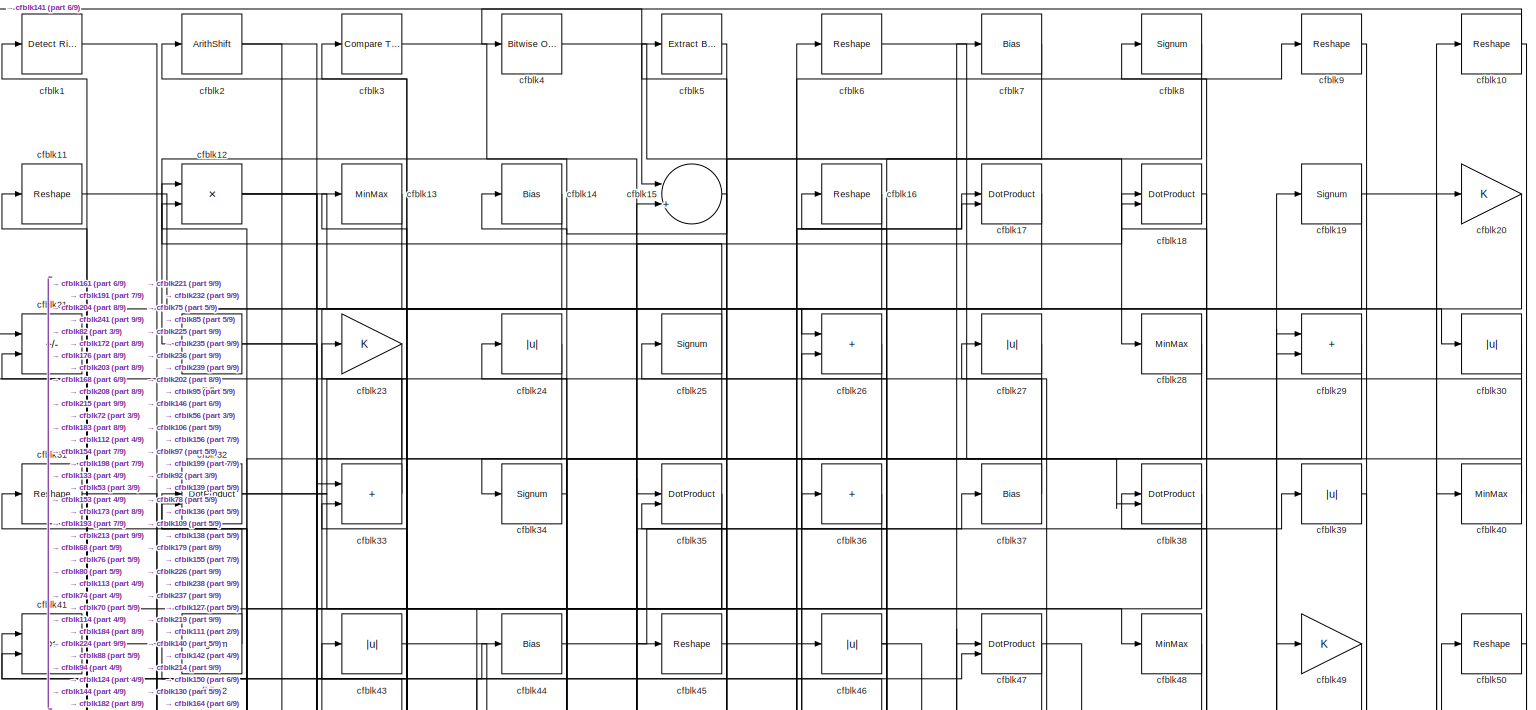
[diagram: root canvas - part 1/9, full width, top band]
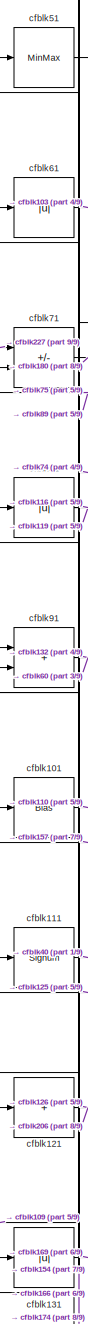
[diagram: root canvas - part 2/9, middle left region]
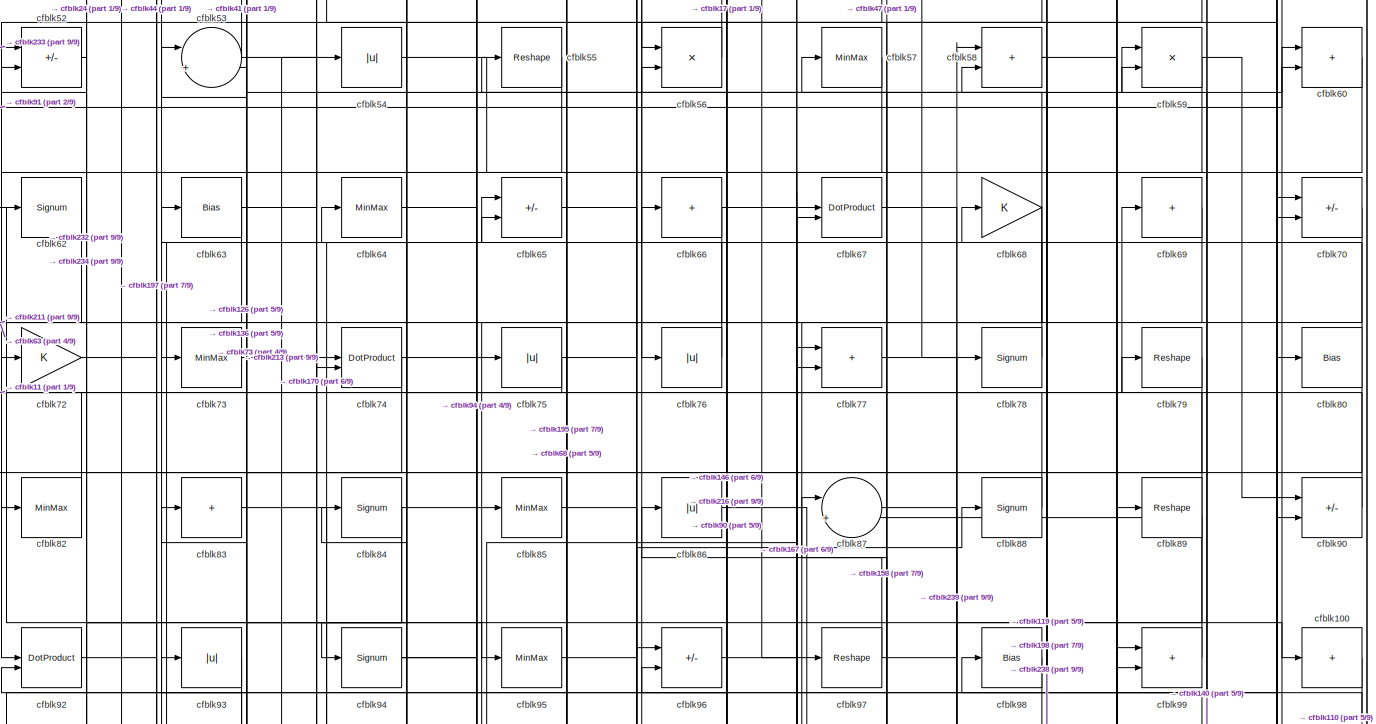
[diagram: root canvas - part 3/9, full width, top band]
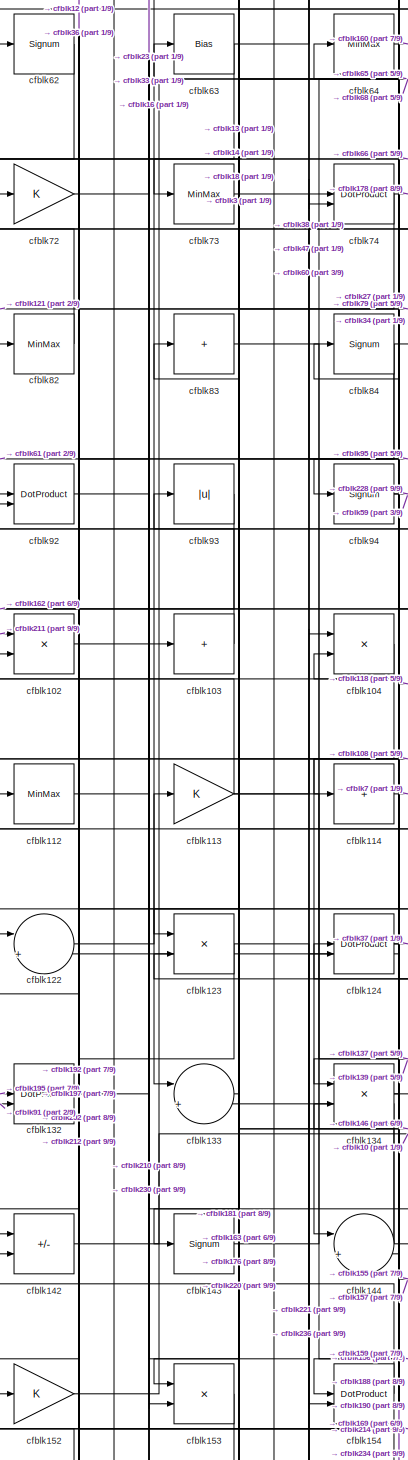
[diagram: root canvas - part 4/9, middle left region]
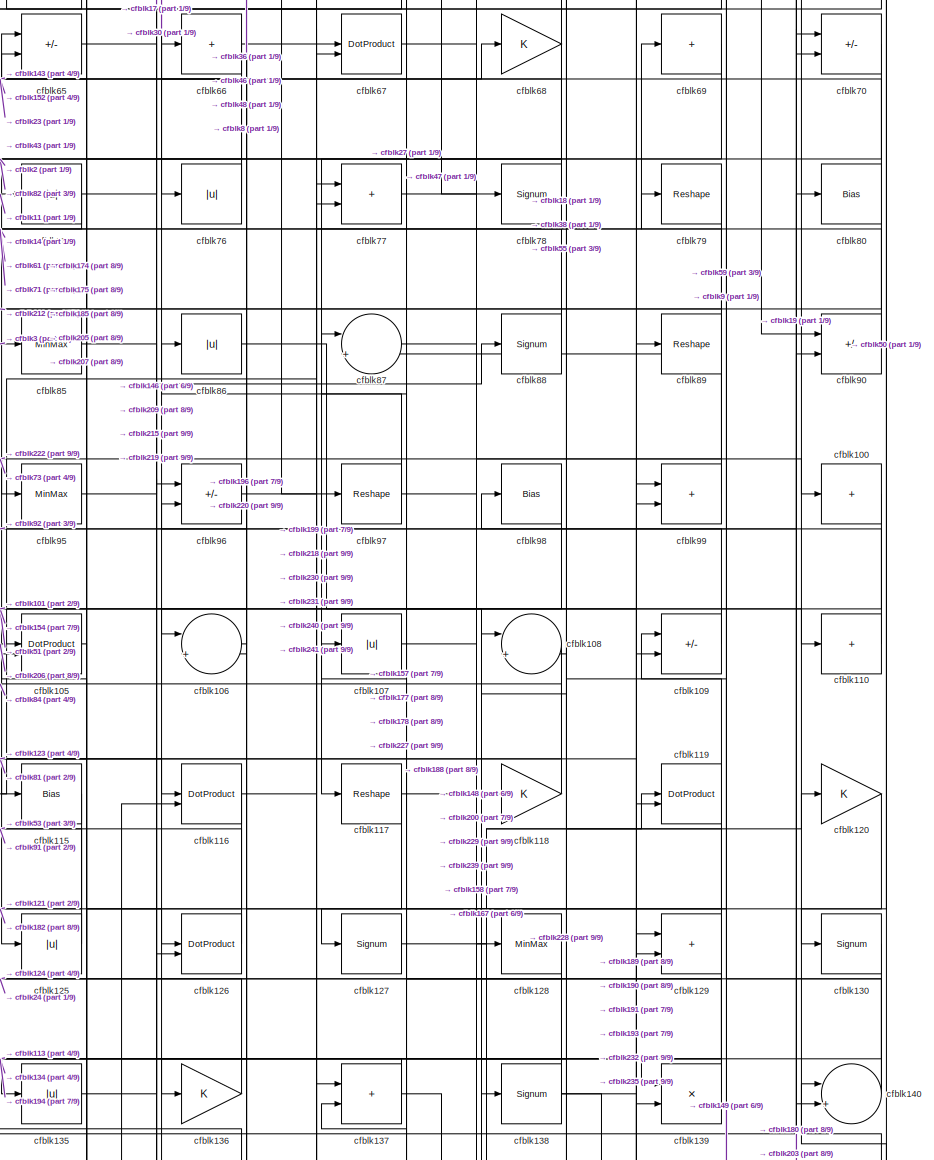
[diagram: root canvas - part 5/9, middle right region]
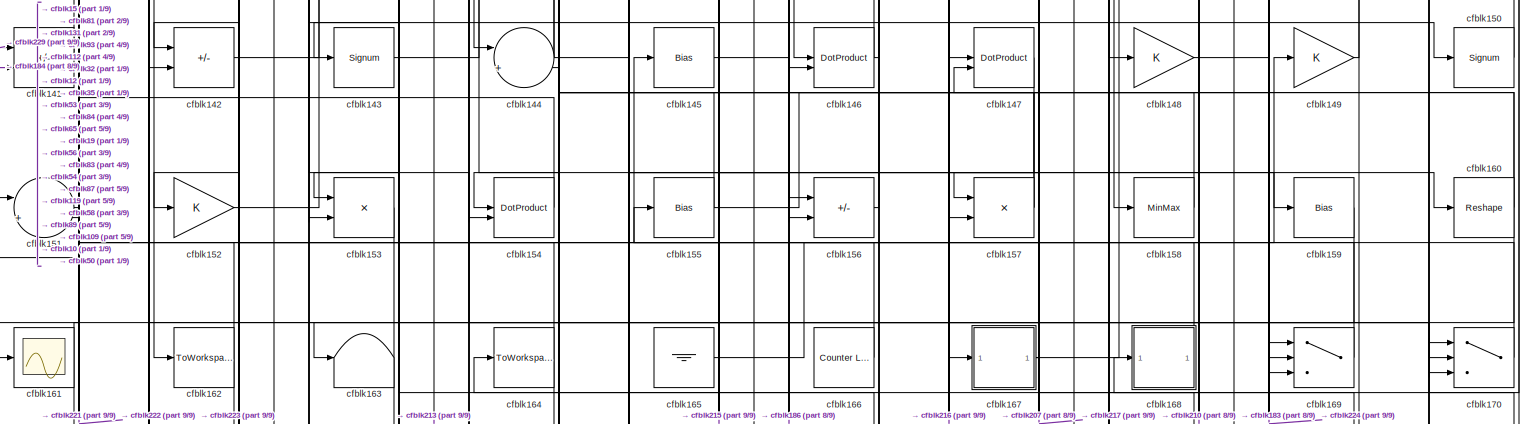
[diagram: root canvas - part 6/9, full width, middle band]
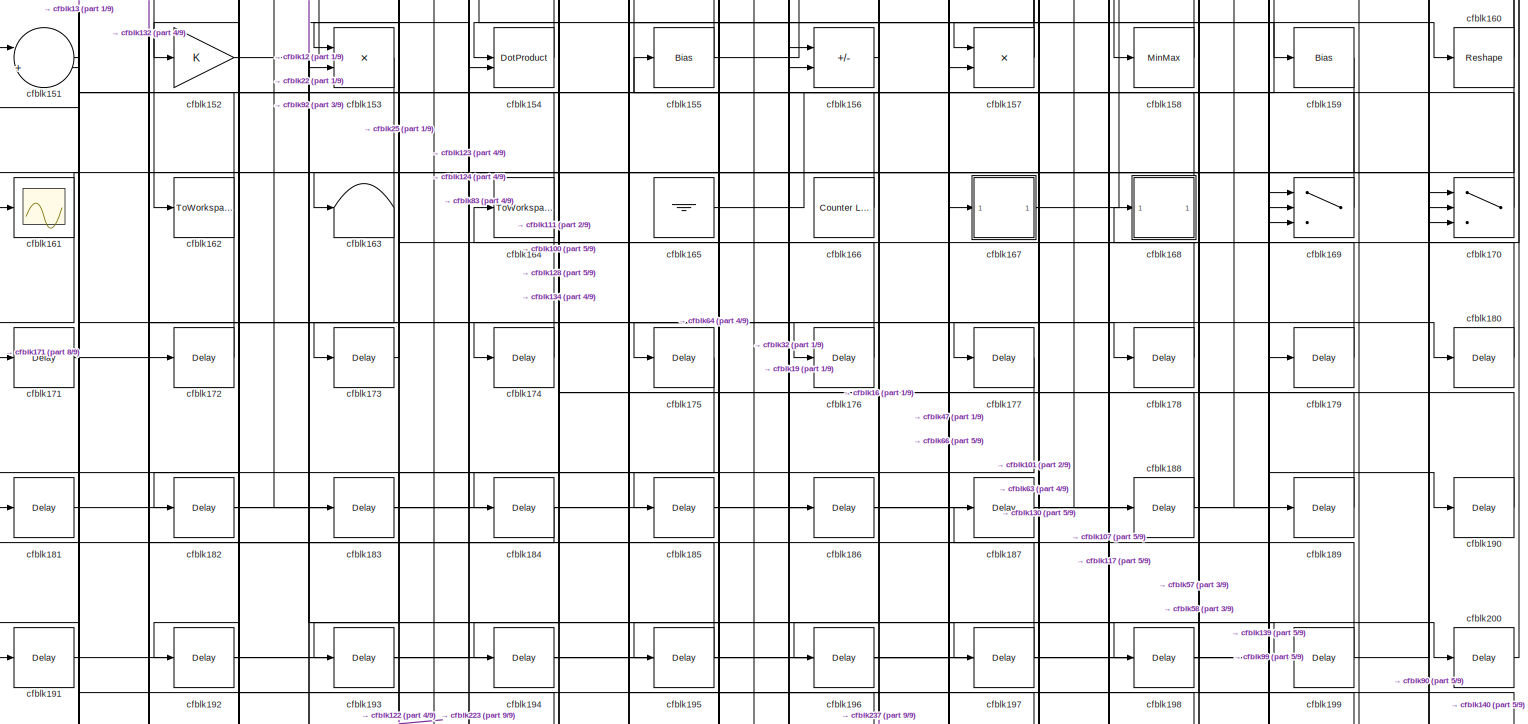
[diagram: root canvas - part 7/9, full width, bottom band]
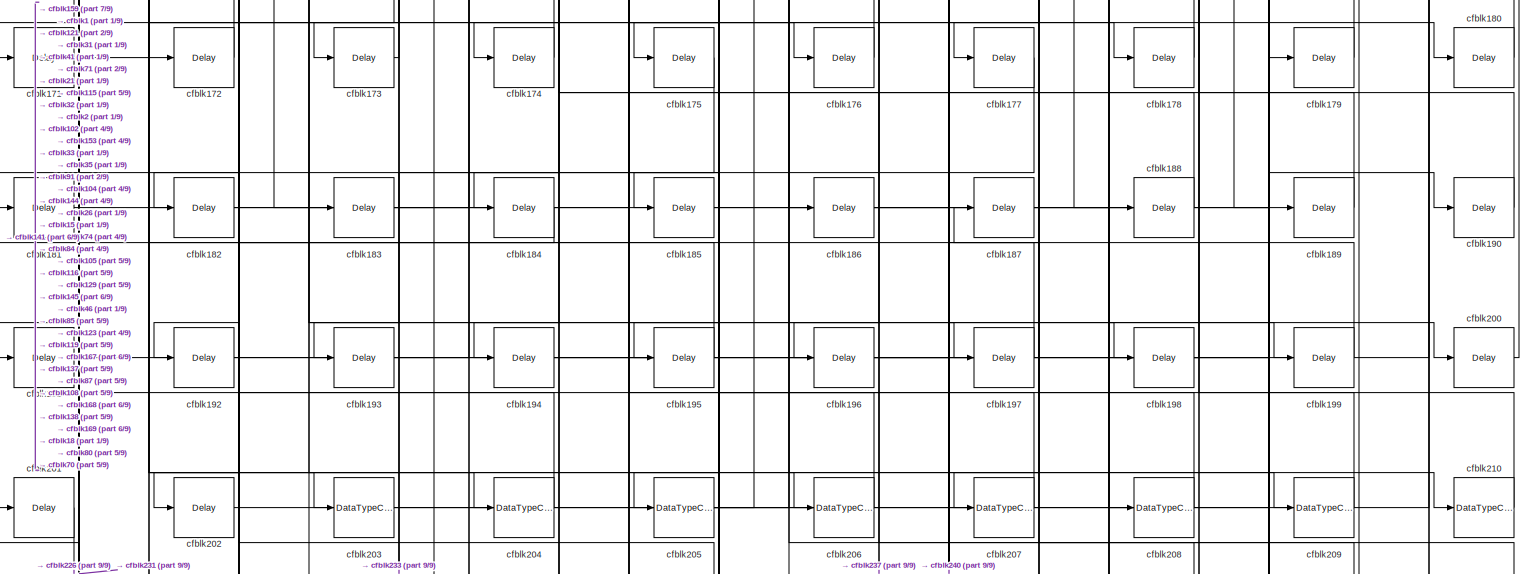
[diagram: root canvas - part 8/9, full width, bottom band]
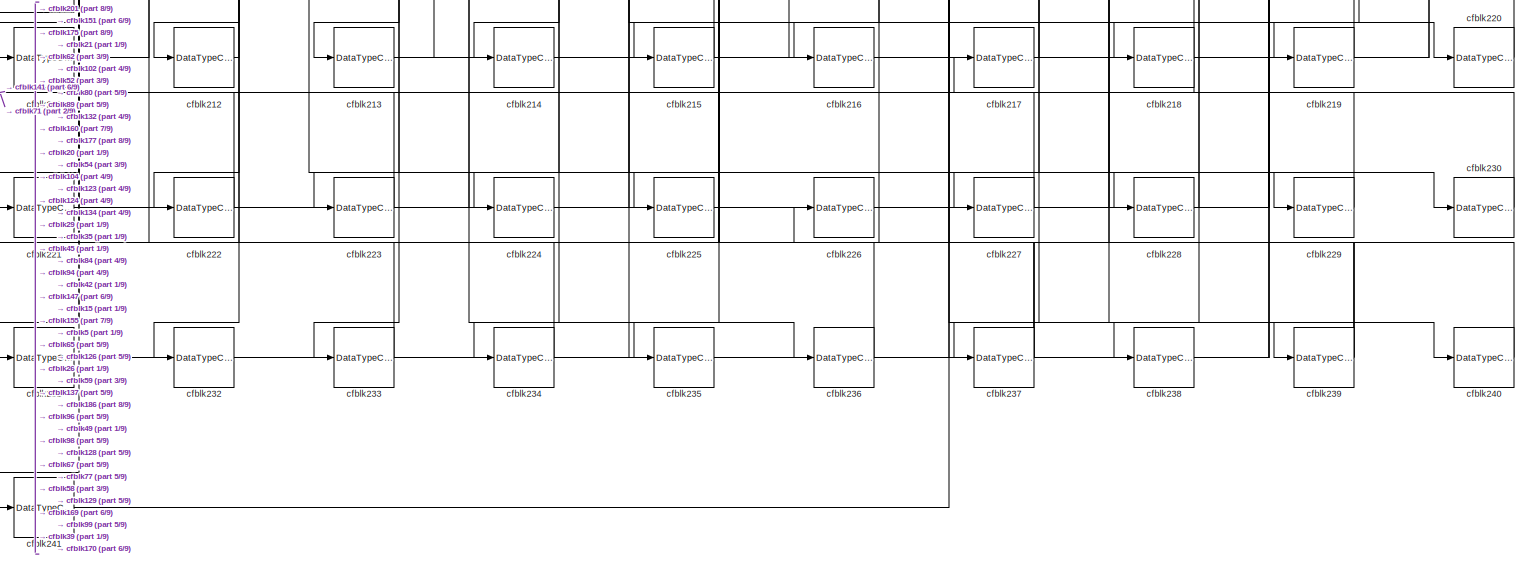
[diagram: root canvas - part 9/9, full width, bottom band]
MODEL slx_066cd724c522
KIND model
CONFIG AbsTol = auto
CONFIG EnableMultiTasking = off
CONFIG FixedStep = auto
CONFIG MaxStep = auto
CONFIG MinStep = auto
CONFIG RelTol = 1e-3
CONFIG SampleTimeConstraint = Unconstrained
CONFIG SolverName = VariableStepAuto
CONFIG StartTime = 0.0
CONFIG StopTime = 10.0
BLOCK [Reference] cfblk1  REF=hdlsllib/Logic and Bit
Operations/Detect Rise
Positive
  SourceBlock = hdlsllib/Logic and Bit\nOperations/Detect Rise\nPositive
  SourceType = Detect Rise Positive
BLOCK [Reshape] cfblk10
BLOCK [Sum] cfblk100
  IconShape = rectangular
  Inputs = +
BLOCK [Bias] cfblk101
  Bias = 0.0
  SaturateOnIntegerOverflow = off
BLOCK [Product] cfblk102
  Inputs = */
  RndMeth = Zero
  SaturateOnIntegerOverflow = on
BLOCK [Sum] cfblk103
  IconShape = rectangular
  Inputs = +
BLOCK [Product] cfblk104
  Inputs = */
  RndMeth = Zero
  SaturateOnIntegerOverflow = on
BLOCK [DotProduct] cfblk105
  OutDataTypeStr = Inherit: Inherit via internal rule
BLOCK [Sum] cfblk106
  Inputs = |++
BLOCK [Abs] cfblk107
  SaturateOnIntegerOverflow = off
BLOCK [Sum] cfblk108
  Inputs = |++
BLOCK [Sum] cfblk109
  IconShape = rectangular
  Inputs = +-
BLOCK [Reshape] cfblk11
BLOCK [Sum] cfblk110
  IconShape = rectangular
  Inputs = +
BLOCK [Signum] cfblk111
BLOCK [MinMax] cfblk112
BLOCK [Gain] cfblk113
BLOCK [Sum] cfblk114
  IconShape = rectangular
  Inputs = +
BLOCK [Bias] cfblk115
  Bias = 0.0
  SaturateOnIntegerOverflow = off
BLOCK [DotProduct] cfblk116
  OutDataTypeStr = Inherit: Inherit via internal rule
BLOCK [Reshape] cfblk117
BLOCK [Gain] cfblk118
BLOCK [DotProduct] cfblk119
  OutDataTypeStr = Inherit: Inherit via internal rule
BLOCK [Product] cfblk12
  Inputs = */
  RndMeth = Zero
  SaturateOnIntegerOverflow = on
BLOCK [Gain] cfblk120
BLOCK [Sum] cfblk121
  IconShape = rectangular
  Inputs = +
BLOCK [Sum] cfblk122
  Inputs = |++
BLOCK [Product] cfblk123
  Inputs = */
  RndMeth = Zero
  SaturateOnIntegerOverflow = on
BLOCK [DotProduct] cfblk124
  OutDataTypeStr = Inherit: Inherit via internal rule
BLOCK [Abs] cfblk125
  SaturateOnIntegerOverflow = off
BLOCK [DotProduct] cfblk126
  OutDataTypeStr = Inherit: Inherit via internal rule
BLOCK [Signum] cfblk127
BLOCK [MinMax] cfblk128
BLOCK [Sum] cfblk129
  IconShape = rectangular
BLOCK [MinMax] cfblk13
BLOCK [Signum] cfblk130
BLOCK [Abs] cfblk131
  SaturateOnIntegerOverflow = off
BLOCK [DotProduct] cfblk132
  OutDataTypeStr = Inherit: Inherit via internal rule
BLOCK [Sum] cfblk133
  Inputs = |++
BLOCK [Product] cfblk134
  Inputs = */
  RndMeth = Zero
  SaturateOnIntegerOverflow = on
BLOCK [Abs] cfblk135
  SaturateOnIntegerOverflow = off
BLOCK [Gain] cfblk136
BLOCK [Sum] cfblk137
  IconShape = rectangular
BLOCK [Signum] cfblk138
BLOCK [Product] cfblk139
  Inputs = */
  RndMeth = Zero
  SaturateOnIntegerOverflow = on
BLOCK [Bias] cfblk14
  Bias = 0.0
  SaturateOnIntegerOverflow = off
BLOCK [Sum] cfblk140
  Inputs = |++
BLOCK [Sum] cfblk141
  IconShape = rectangular
  Inputs = +-
BLOCK [Sum] cfblk142
  IconShape = rectangular
  Inputs = +-
BLOCK [Signum] cfblk143
BLOCK [Sum] cfblk144
  Inputs = |++
BLOCK [Bias] cfblk145
  Bias = 0.0
  SaturateOnIntegerOverflow = off
BLOCK [DotProduct] cfblk146
  OutDataTypeStr = Inherit: Inherit via internal rule
BLOCK [DotProduct] cfblk147
  OutDataTypeStr = Inherit: Inherit via internal rule
BLOCK [Gain] cfblk148
BLOCK [Gain] cfblk149
BLOCK [Sum] cfblk15
  Inputs = |++
BLOCK [Signum] cfblk150
BLOCK [Sum] cfblk151
  Inputs = |++
BLOCK [Gain] cfblk152
BLOCK [Product] cfblk153
  Inputs = */
  RndMeth = Zero
  SaturateOnIntegerOverflow = on
BLOCK [DotProduct] cfblk154
  OutDataTypeStr = Inherit: Inherit via internal rule
BLOCK [Bias] cfblk155
  Bias = 0.0
  SaturateOnIntegerOverflow = off
BLOCK [Sum] cfblk156
  IconShape = rectangular
  Inputs = +-
BLOCK [Product] cfblk157
  Inputs = */
  RndMeth = Zero
  SaturateOnIntegerOverflow = on
BLOCK [MinMax] cfblk158
BLOCK [Bias] cfblk159
  Bias = 0.0
  SaturateOnIntegerOverflow = off
BLOCK [Reshape] cfblk16
BLOCK [Reshape] cfblk160
BLOCK [Scope] cfblk161
  Floating = off
  NumInputPorts = 1
  ScopeSpecificationString = Simulink.scopes.TimeScopeBlockCfg('CurrentConfiguration', extmgr.ConfigurationSet(extmgr.Configuration('Core','General UI',true),extmgr.Configuration('Core','Source UI',true),extmgr.Configuration('Sources','WiredSimulink',true,'DataLoggingVariableName','ScopeData2','DataLoggingSaveFormat','Array','DataLoggingLimitDataPoints',true,'DataLoggingDecimation','1'),extmgr.Configuration('Visuals','Time Do...<+868ch>
BLOCK [ToWorkspace] cfblk162
  MaxDataPoints = inf
  SampleTime = -1
  SaveFormat = Timeseries
  VariableName = simout
BLOCK [Terminator] cfblk163
BLOCK [ToWorkspace] cfblk164
  MaxDataPoints = inf
  SampleTime = -1
  SaveFormat = Timeseries
  VariableName = simout
BLOCK [Ground] cfblk165
BLOCK [Reference] cfblk166  REF=hdlsllib/Sources/Counter
Limited
  SourceBlock = hdlsllib/Sources/Counter\nLimited
  SourceType = Counter Limited
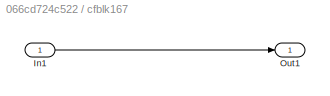
BLOCK [SubSystem] cfblk167
  LibrarySourceBlock = hdlsllib/Ports &\nSubsystems/Subsystem
BLOCK [Inport] cfblk167/In1
BLOCK [Outport] cfblk167/Out1
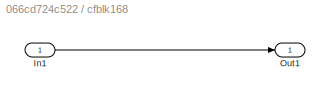
BLOCK [SubSystem] cfblk168
  LibrarySourceBlock = hdlsllib/Ports &\nSubsystems/Subsystem
BLOCK [Inport] cfblk168/In1
BLOCK [Outport] cfblk168/Out1
BLOCK [Switch] cfblk169
  InputSameDT = off
  SaturateOnIntegerOverflow = off
BLOCK [DotProduct] cfblk17
  OutDataTypeStr = Inherit: Inherit via internal rule
BLOCK [Switch] cfblk170
  InputSameDT = off
  SaturateOnIntegerOverflow = off
BLOCK [Delay] cfblk171
  InputPortMap = u0
  SampleTime = 1
BLOCK [Delay] cfblk172
  InputPortMap = u0
  SampleTime = 1
BLOCK [Delay] cfblk173
  InputPortMap = u0
  SampleTime = 1
BLOCK [Delay] cfblk174
  InputPortMap = u0
  SampleTime = 1
BLOCK [Delay] cfblk175
  InputPortMap = u0
  SampleTime = 1
BLOCK [Delay] cfblk176
  InputPortMap = u0
  SampleTime = 1
BLOCK [Delay] cfblk177
  InputPortMap = u0
  SampleTime = 1
BLOCK [Delay] cfblk178
  InputPortMap = u0
  SampleTime = 1
BLOCK [Delay] cfblk179
  InputPortMap = u0
  SampleTime = 1
BLOCK [DotProduct] cfblk18
  OutDataTypeStr = Inherit: Inherit via internal rule
BLOCK [Delay] cfblk180
  InputPortMap = u0
  SampleTime = 1
BLOCK [Delay] cfblk181
  InputPortMap = u0
  SampleTime = 1
BLOCK [Delay] cfblk182
  InputPortMap = u0
  SampleTime = 1
BLOCK [Delay] cfblk183
  InputPortMap = u0
  SampleTime = 1
BLOCK [Delay] cfblk184
  InputPortMap = u0
  SampleTime = 1
BLOCK [Delay] cfblk185
  InputPortMap = u0
  SampleTime = 1
BLOCK [Delay] cfblk186
  InputPortMap = u0
  SampleTime = 1
BLOCK [Delay] cfblk187
  InputPortMap = u0
  SampleTime = 1
BLOCK [Delay] cfblk188
  InputPortMap = u0
  SampleTime = 1
BLOCK [Delay] cfblk189
  InputPortMap = u0
  SampleTime = 1
BLOCK [Signum] cfblk19
BLOCK [Delay] cfblk190
  InputPortMap = u0
  SampleTime = 1
BLOCK [Delay] cfblk191
  InputPortMap = u0
  SampleTime = 1
BLOCK [Delay] cfblk192
  InputPortMap = u0
  SampleTime = 1
BLOCK [Delay] cfblk193
  InputPortMap = u0
  SampleTime = 1
BLOCK [Delay] cfblk194
  InputPortMap = u0
  SampleTime = 1
BLOCK [Delay] cfblk195
  InputPortMap = u0
  SampleTime = 1
BLOCK [Delay] cfblk196
  InputPortMap = u0
  SampleTime = 1
BLOCK [Delay] cfblk197
  InputPortMap = u0
  SampleTime = 1
BLOCK [Delay] cfblk198
  InputPortMap = u0
  SampleTime = 1
BLOCK [Delay] cfblk199
  InputPortMap = u0
  SampleTime = 1
BLOCK [ArithShift] cfblk2
  BitShiftNumber = 8
  InputPortMap = u0
BLOCK [Gain] cfblk20
BLOCK [Delay] cfblk200
  InputPortMap = u0
  SampleTime = 1
BLOCK [Delay] cfblk201
  InputPortMap = u0
  SampleTime = 1
BLOCK [Delay] cfblk202
  InputPortMap = u0
  SampleTime = 1
BLOCK [DataTypeConversion] cfblk203
  OutDataTypeStr = uint8
  RndMeth = Floor
  SaturateOnIntegerOverflow = off
BLOCK [DataTypeConversion] cfblk204
  OutDataTypeStr = uint8
  RndMeth = Floor
  SaturateOnIntegerOverflow = off
BLOCK [DataTypeConversion] cfblk205
  RndMeth = Floor
  SaturateOnIntegerOverflow = off
BLOCK [DataTypeConversion] cfblk206
  OutDataTypeStr = uint8
  RndMeth = Floor
  SaturateOnIntegerOverflow = off
BLOCK [DataTypeConversion] cfblk207
  OutDataTypeStr = uint8
  RndMeth = Floor
  SaturateOnIntegerOverflow = off
BLOCK [DataTypeConversion] cfblk208
  OutDataTypeStr = uint8
  RndMeth = Floor
  SaturateOnIntegerOverflow = off
BLOCK [DataTypeConversion] cfblk209
  OutDataTypeStr = uint8
  RndMeth = Floor
  SaturateOnIntegerOverflow = off
BLOCK [Sum] cfblk21
  IconShape = rectangular
  Inputs = +-
BLOCK [DataTypeConversion] cfblk210
  OutDataTypeStr = uint8
  RndMeth = Floor
  SaturateOnIntegerOverflow = off
BLOCK [DataTypeConversion] cfblk211
  OutDataTypeStr = uint8
  RndMeth = Floor
  SaturateOnIntegerOverflow = off
BLOCK [DataTypeConversion] cfblk212
  OutDataTypeStr = uint8
  RndMeth = Floor
  SaturateOnIntegerOverflow = off
BLOCK [DataTypeConversion] cfblk213
  RndMeth = Floor
  SaturateOnIntegerOverflow = off
BLOCK [DataTypeConversion] cfblk214
  OutDataTypeStr = uint8
  RndMeth = Floor
  SaturateOnIntegerOverflow = off
BLOCK [DataTypeConversion] cfblk215
  RndMeth = Floor
  SaturateOnIntegerOverflow = off
BLOCK [DataTypeConversion] cfblk216
  OutDataTypeStr = uint8
  RndMeth = Floor
  SaturateOnIntegerOverflow = off
BLOCK [DataTypeConversion] cfblk217
  OutDataTypeStr = uint8
  RndMeth = Floor
  SaturateOnIntegerOverflow = off
BLOCK [DataTypeConversion] cfblk218
  RndMeth = Floor
  SaturateOnIntegerOverflow = off
BLOCK [DataTypeConversion] cfblk219
  OutDataTypeStr = uint8
  RndMeth = Floor
  SaturateOnIntegerOverflow = off
BLOCK [MinMax] cfblk22
BLOCK [DataTypeConversion] cfblk220
  OutDataTypeStr = uint8
  RndMeth = Floor
  SaturateOnIntegerOverflow = off
BLOCK [DataTypeConversion] cfblk221
  RndMeth = Floor
  SaturateOnIntegerOverflow = off
BLOCK [DataTypeConversion] cfblk222
  OutDataTypeStr = uint8
  RndMeth = Floor
  SaturateOnIntegerOverflow = off
BLOCK [DataTypeConversion] cfblk223
  OutDataTypeStr = uint8
  RndMeth = Floor
  SaturateOnIntegerOverflow = off
BLOCK [DataTypeConversion] cfblk224
  OutDataTypeStr = uint8
  RndMeth = Floor
  SaturateOnIntegerOverflow = off
BLOCK [DataTypeConversion] cfblk225
  OutDataTypeStr = uint8
  RndMeth = Floor
  SaturateOnIntegerOverflow = off
BLOCK [DataTypeConversion] cfblk226
  OutDataTypeStr = uint8
  RndMeth = Floor
  SaturateOnIntegerOverflow = off
BLOCK [DataTypeConversion] cfblk227
  RndMeth = Floor
  SaturateOnIntegerOverflow = off
BLOCK [DataTypeConversion] cfblk228
  OutDataTypeStr = uint8
  RndMeth = Floor
  SaturateOnIntegerOverflow = off
BLOCK [DataTypeConversion] cfblk229
  OutDataTypeStr = uint8
  RndMeth = Floor
  SaturateOnIntegerOverflow = off
BLOCK [Gain] cfblk23
BLOCK [DataTypeConversion] cfblk230
  OutDataTypeStr = uint8
  RndMeth = Floor
  SaturateOnIntegerOverflow = off
BLOCK [DataTypeConversion] cfblk231
  OutDataTypeStr = uint8
  RndMeth = Floor
  SaturateOnIntegerOverflow = off
BLOCK [DataTypeConversion] cfblk232
  RndMeth = Floor
  SaturateOnIntegerOverflow = off
BLOCK [DataTypeConversion] cfblk233
  OutDataTypeStr = uint8
  RndMeth = Floor
  SaturateOnIntegerOverflow = off
BLOCK [DataTypeConversion] cfblk234
  OutDataTypeStr = uint8
  RndMeth = Floor
  SaturateOnIntegerOverflow = off
BLOCK [DataTypeConversion] cfblk235
  OutDataTypeStr = uint8
  RndMeth = Floor
  SaturateOnIntegerOverflow = off
BLOCK [DataTypeConversion] cfblk236
  OutDataTypeStr = uint8
  RndMeth = Floor
  SaturateOnIntegerOverflow = off
BLOCK [DataTypeConversion] cfblk237
  RndMeth = Floor
  SaturateOnIntegerOverflow = off
BLOCK [DataTypeConversion] cfblk238
  OutDataTypeStr = uint8
  RndMeth = Floor
  SaturateOnIntegerOverflow = off
BLOCK [DataTypeConversion] cfblk239
  RndMeth = Floor
  SaturateOnIntegerOverflow = off
BLOCK [Abs] cfblk24
  SaturateOnIntegerOverflow = off
BLOCK [DataTypeConversion] cfblk240
  OutDataTypeStr = uint8
  RndMeth = Floor
  SaturateOnIntegerOverflow = off
BLOCK [DataTypeConversion] cfblk241
  OutDataTypeStr = uint8
  RndMeth = Floor
  SaturateOnIntegerOverflow = off
BLOCK [Signum] cfblk25
BLOCK [Sum] cfblk26
  IconShape = rectangular
BLOCK [Abs] cfblk27
  SaturateOnIntegerOverflow = off
BLOCK [MinMax] cfblk28
BLOCK [Sum] cfblk29
  IconShape = rectangular
BLOCK [Reference] cfblk3  REF=hdlsllib/Logic and Bit
Operations/Compare
To Constant
  SourceBlock = hdlsllib/Logic and Bit\nOperations/Compare\nTo Constant
  SourceType = Compare To Constant
BLOCK [Abs] cfblk30
  SaturateOnIntegerOverflow = off
BLOCK [Reshape] cfblk31
BLOCK [DotProduct] cfblk32
  OutDataTypeStr = Inherit: Inherit via internal rule
BLOCK [Sum] cfblk33
  IconShape = rectangular
BLOCK [Signum] cfblk34
BLOCK [DotProduct] cfblk35
  OutDataTypeStr = Inherit: Inherit via internal rule
BLOCK [Sum] cfblk36
  IconShape = rectangular
  Inputs = +
BLOCK [Bias] cfblk37
  Bias = 0.0
  SaturateOnIntegerOverflow = off
BLOCK [DotProduct] cfblk38
  OutDataTypeStr = Inherit: Inherit via internal rule
BLOCK [Abs] cfblk39
  SaturateOnIntegerOverflow = off
BLOCK [Reference] cfblk4  REF=simulink/Logic and Bit
Operations/Bitwise
Operator
  LibrarySourceBlock = hdlsllib/Logic and Bit\nOperations/Bitwise\nOperator
  SourceBlock = simulink/Logic and Bit\nOperations/Bitwise\nOperator
  SourceType = Bitwise Operator
BLOCK [MinMax] cfblk40
BLOCK [Product] cfblk41
  Inputs = */
  RndMeth = Zero
  SaturateOnIntegerOverflow = on
BLOCK [Signum] cfblk42
BLOCK [Abs] cfblk43
  SaturateOnIntegerOverflow = off
BLOCK [Bias] cfblk44
  Bias = 0.0
  SaturateOnIntegerOverflow = off
BLOCK [Reshape] cfblk45
BLOCK [Abs] cfblk46
  SaturateOnIntegerOverflow = off
BLOCK [DotProduct] cfblk47
  OutDataTypeStr = Inherit: Inherit via internal rule
BLOCK [MinMax] cfblk48
BLOCK [Gain] cfblk49
BLOCK [Reference] cfblk5  REF=simulink/Logic and Bit
Operations/Extract Bits
  LibrarySourceBlock = hdlsllib/Logic and Bit\nOperations/Extract Bits
  SourceBlock = simulink/Logic and Bit\nOperations/Extract Bits
  SourceType = Extract Bits
BLOCK [Reshape] cfblk50
BLOCK [MinMax] cfblk51
BLOCK [Sum] cfblk52
  IconShape = rectangular
  Inputs = +-
BLOCK [Sum] cfblk53
  Inputs = |++
BLOCK [Abs] cfblk54
  SaturateOnIntegerOverflow = off
BLOCK [Reshape] cfblk55
BLOCK [Product] cfblk56
  Inputs = */
  RndMeth = Zero
  SaturateOnIntegerOverflow = on
BLOCK [MinMax] cfblk57
BLOCK [Sum] cfblk58
  IconShape = rectangular
BLOCK [Product] cfblk59
  Inputs = */
  RndMeth = Zero
  SaturateOnIntegerOverflow = on
BLOCK [Reshape] cfblk6
BLOCK [Sum] cfblk60
  IconShape = rectangular
BLOCK [Abs] cfblk61
  SaturateOnIntegerOverflow = off
BLOCK [Signum] cfblk62
BLOCK [Bias] cfblk63
  Bias = 0.0
  SaturateOnIntegerOverflow = off
BLOCK [MinMax] cfblk64
BLOCK [Sum] cfblk65
  IconShape = rectangular
  Inputs = +-
BLOCK [Sum] cfblk66
  IconShape = rectangular
  Inputs = +
BLOCK [DotProduct] cfblk67
  OutDataTypeStr = Inherit: Inherit via internal rule
BLOCK [Gain] cfblk68
BLOCK [Sum] cfblk69
  IconShape = rectangular
  Inputs = +
BLOCK [Bias] cfblk7
  Bias = 0.0
  SaturateOnIntegerOverflow = off
BLOCK [Sum] cfblk70
  IconShape = rectangular
  Inputs = +-
BLOCK [Sum] cfblk71
  IconShape = rectangular
  Inputs = +-
BLOCK [Gain] cfblk72
BLOCK [MinMax] cfblk73
BLOCK [DotProduct] cfblk74
  OutDataTypeStr = Inherit: Inherit via internal rule
BLOCK [Abs] cfblk75
  SaturateOnIntegerOverflow = off
BLOCK [Abs] cfblk76
  SaturateOnIntegerOverflow = off
BLOCK [Sum] cfblk77
  IconShape = rectangular
BLOCK [Signum] cfblk78
BLOCK [Reshape] cfblk79
BLOCK [Signum] cfblk8
BLOCK [Bias] cfblk80
  Bias = 0.0
  SaturateOnIntegerOverflow = off
BLOCK [Abs] cfblk81
  SaturateOnIntegerOverflow = off
BLOCK [MinMax] cfblk82
BLOCK [Sum] cfblk83
  IconShape = rectangular
  Inputs = +
BLOCK [Signum] cfblk84
BLOCK [MinMax] cfblk85
BLOCK [Abs] cfblk86
  SaturateOnIntegerOverflow = off
BLOCK [Sum] cfblk87
  Inputs = |++
BLOCK [Signum] cfblk88
BLOCK [Reshape] cfblk89
BLOCK [Reshape] cfblk9
BLOCK [Sum] cfblk90
  IconShape = rectangular
  Inputs = +-
BLOCK [Sum] cfblk91
  IconShape = rectangular
BLOCK [DotProduct] cfblk92
  OutDataTypeStr = Inherit: Inherit via internal rule
BLOCK [Abs] cfblk93
  SaturateOnIntegerOverflow = off
BLOCK [Signum] cfblk94
BLOCK [MinMax] cfblk95
BLOCK [Sum] cfblk96
  IconShape = rectangular
  Inputs = +-
BLOCK [Reshape] cfblk97
BLOCK [Bias] cfblk98
  Bias = 0.0
  SaturateOnIntegerOverflow = off
BLOCK [Sum] cfblk99
  IconShape = rectangular
LINE cfblk100:1 -> cfblk154:1
LINE cfblk101:1 -> cfblk110:1
LINE cfblk102:1 -> cfblk210:1
LINE cfblk103:1 -> cfblk93:1
LINE cfblk104:1 -> cfblk144:1
LINE cfblk105:1 -> cfblk205:1
LINE cfblk106:1 -> cfblk36:1
LINE cfblk107:1 -> cfblk200:1
LINE cfblk108:1 -> cfblk123:1
LINE cfblk109:1 -> cfblk38:1
NET cfblk10:1 -> cfblk164:1, cfblk4:1
LINE cfblk110:1 -> cfblk92:2
LINE cfblk111:1 -> cfblk40:1
LINE cfblk112:1 -> cfblk33:1
NET cfblk113:1 -> cfblk12:1, cfblk139:1, cfblk47:2
LINE cfblk114:1 -> cfblk7:1
LINE cfblk115:1 -> cfblk182:1
NET cfblk116:1 -> cfblk185:1, cfblk79:1
NET cfblk117:1 -> cfblk158:1, cfblk196:1
LINE cfblk118:1 -> cfblk84:1
NET cfblk119:1 -> cfblk177:1, cfblk55:1
LINE cfblk11:1 -> cfblk75:1
LINE cfblk120:1 -> cfblk135:1
NET cfblk121:1 -> cfblk126:1, cfblk206:1
LINE cfblk122:1 -> cfblk113:1
NET cfblk123:1 -> cfblk192:1, cfblk236:1
NET cfblk124:1 -> cfblk234:1, cfblk37:1
LINE cfblk125:1 -> cfblk91:2
LINE cfblk126:1 -> cfblk53:1
LINE cfblk127:1 -> cfblk120:1
LINE cfblk128:1 -> cfblk194:1
NET cfblk129:1 -> cfblk108:2, cfblk174:1, cfblk175:1
NET cfblk12:1 -> cfblk150:1, cfblk198:1, cfblk30:1
LINE cfblk130:1 -> cfblk157:1
LINE cfblk131:1 -> cfblk169:3
LINE cfblk132:1 -> cfblk230:1
LINE cfblk133:1 -> cfblk3:1
NET cfblk134:1 -> cfblk156:2, cfblk214:1
LINE cfblk135:1 -> cfblk88:1
LINE cfblk136:1 -> cfblk53:2
NET cfblk137:1 -> cfblk134:1, cfblk188:1
NET cfblk138:1 -> cfblk189:1, cfblk190:1, cfblk24:1
NET cfblk139:1 -> cfblk124:1, cfblk27:1
LINE cfblk13:1 -> cfblk191:1
NET cfblk140:1 -> cfblk107:1, cfblk59:2
LINE cfblk141:1 -> cfblk15:1
LINE cfblk142:1 -> cfblk10:1
LINE cfblk143:1 -> cfblk68:1
NET cfblk144:1 -> cfblk133:2, cfblk13:1, cfblk18:1
LINE cfblk145:1 -> cfblk186:1
NET cfblk146:1 -> cfblk56:2, cfblk83:1
LINE cfblk147:1 -> cfblk215:1
LINE cfblk148:1 -> cfblk89:1
LINE cfblk149:1 -> cfblk109:1
LINE cfblk14:1 -> cfblk153:1
LINE cfblk150:1 -> cfblk50:1
LINE cfblk151:1 -> cfblk221:1
LINE cfblk152:1 -> cfblk65:1
LINE cfblk153:1 -> cfblk181:1
LINE cfblk154:1 -> cfblk111:1
NET cfblk155:1 -> cfblk19:1, cfblk64:1
LINE cfblk156:1 -> cfblk16:1
NET cfblk157:1 -> cfblk101:1, cfblk63:1
LINE cfblk158:1 -> cfblk57:1
LINE cfblk159:1 -> cfblk171:1
LINE cfblk15:1 -> cfblk225:1
NET cfblk160:1 -> cfblk122:2, cfblk134:2, cfblk223:1
LINE cfblk165:1 -> cfblk149:1
LINE cfblk166:1 -> cfblk81:1
LINE cfblk167/In1:1 -> cfblk167/Out1:1
NET cfblk167:1 -> cfblk119:1, cfblk207:1
LINE cfblk168/In1:1 -> cfblk168/Out1:1
LINE cfblk168:1 -> cfblk32:1
LINE cfblk169:1 -> cfblk112:1
LINE cfblk16:1 -> cfblk133:1
LINE cfblk170:1 -> cfblk145:1
LINE cfblk171:1 -> cfblk204:1
LINE cfblk172:1 -> cfblk21:1
LINE cfblk173:1 -> cfblk33:2
LINE cfblk174:1 -> cfblk91:1
LINE cfblk175:1 -> cfblk231:1
LINE cfblk176:1 -> cfblk123:2
LINE cfblk177:1 -> cfblk233:1
LINE cfblk178:1 -> cfblk87:1
LINE cfblk179:1 -> cfblk18:2
LINE cfblk17:1 -> cfblk56:1
LINE cfblk180:1 -> cfblk70:1
LINE cfblk181:1 -> cfblk74:1
LINE cfblk182:1 -> cfblk15:2
LINE cfblk183:1 -> cfblk169:2
LINE cfblk184:1 -> cfblk141:2
LINE cfblk185:1 -> cfblk129:2
LINE cfblk186:1 -> cfblk240:1
LINE cfblk187:1 -> cfblk208:1
LINE cfblk188:1 -> cfblk104:2
LINE cfblk189:1 -> cfblk108:1
LINE cfblk18:1 -> cfblk138:1
LINE cfblk190:1 -> cfblk144:2
LINE cfblk191:1 -> cfblk99:1
LINE cfblk192:1 -> cfblk124:2
LINE cfblk193:1 -> cfblk139:2
LINE cfblk194:1 -> cfblk157:2
LINE cfblk195:1 -> cfblk132:1
LINE cfblk196:1 -> cfblk90:2
LINE cfblk197:1 -> cfblk122:1
LINE cfblk198:1 -> cfblk58:2
LINE cfblk199:1 -> cfblk47:1
NET cfblk19:1 -> cfblk140:2, cfblk146:1
LINE cfblk1:1 -> cfblk203:1
LINE cfblk200:1 -> cfblk140:1
LINE cfblk201:1 -> cfblk226:1
LINE cfblk202:1 -> cfblk46:1
LINE cfblk203:1 -> cfblk80:1
LINE cfblk204:1 -> cfblk1:1
NET cfblk205:1 -> cfblk116:2, cfblk179:1
LINE cfblk206:1 -> cfblk105:1
LINE cfblk207:1 -> cfblk105:2
LINE cfblk208:1 -> cfblk32:2
LINE cfblk209:1 -> cfblk187:1
LINE cfblk20:1 -> cfblk213:1
LINE cfblk210:1 -> cfblk168:1
LINE cfblk211:1 -> cfblk102:1
LINE cfblk212:1 -> cfblk102:2
NET cfblk213:1 -> cfblk170:1, cfblk54:1
LINE cfblk214:1 -> cfblk20:1
NET cfblk215:1 -> cfblk126:2, cfblk137:1, cfblk42:1
LINE cfblk216:1 -> cfblk147:1
LINE cfblk217:1 -> cfblk147:2
NET cfblk218:1 -> cfblk137:2, cfblk217:1
LINE cfblk219:1 -> cfblk96:1
LINE cfblk21:1 -> cfblk241:1
LINE cfblk220:1 -> cfblk96:2
NET cfblk221:1 -> cfblk104:1, cfblk35:1
LINE cfblk222:1 -> cfblk151:1
LINE cfblk223:1 -> cfblk151:2
LINE cfblk224:1 -> cfblk169:1
LINE cfblk225:1 -> cfblk29:1
LINE cfblk226:1 -> cfblk29:2
NET cfblk227:1 -> cfblk128:1, cfblk71:1
LINE cfblk228:1 -> cfblk98:1
LINE cfblk229:1 -> cfblk141:1
NET cfblk22:1 -> cfblk154:2, cfblk48:1
LINE cfblk230:1 -> cfblk67:1
LINE cfblk231:1 -> cfblk67:2
NET cfblk232:1 -> cfblk129:1, cfblk45:1
LINE cfblk233:1 -> cfblk52:1
LINE cfblk234:1 -> cfblk52:2
LINE cfblk235:1 -> cfblk99:2
LINE cfblk236:1 -> cfblk5:1
NET cfblk237:1 -> cfblk155:1, cfblk201:1, cfblk26:2
LINE cfblk238:1 -> cfblk49:1
NET cfblk239:1 -> cfblk35:2, cfblk58:1, cfblk65:2
LINE cfblk23:1 -> cfblk153:2
LINE cfblk240:1 -> cfblk77:1
LINE cfblk241:1 -> cfblk77:2
LINE cfblk24:1 -> cfblk72:1
NET cfblk25:1 -> cfblk12:2, cfblk193:1
LINE cfblk26:1 -> cfblk184:1
LINE cfblk27:1 -> cfblk114:1
LINE cfblk28:1 -> cfblk34:1
LINE cfblk29:1 -> cfblk224:1
NET cfblk2:1 -> cfblk183:1, cfblk26:1
LINE cfblk30:1 -> cfblk76:1
LINE cfblk31:1 -> cfblk176:1
NET cfblk32:1 -> cfblk156:1, cfblk6:1
LINE cfblk33:1 -> cfblk21:2
LINE cfblk34:1 -> cfblk94:1
NET cfblk35:1 -> cfblk161:1, cfblk173:1
LINE cfblk36:1 -> cfblk142:1
LINE cfblk37:1 -> cfblk25:1
LINE cfblk38:1 -> cfblk74:2
LINE cfblk39:1 -> cfblk219:1
LINE cfblk3:1 -> cfblk85:1
LINE cfblk40:1 -> cfblk8:1
LINE cfblk41:1 -> cfblk172:1
LINE cfblk42:1 -> cfblk31:1
LINE cfblk43:1 -> cfblk70:2
LINE cfblk44:1 -> cfblk39:1
LINE cfblk45:1 -> cfblk17:1
NET cfblk46:1 -> cfblk106:1, cfblk97:1
NET cfblk47:1 -> cfblk78:1, cfblk92:1
LINE cfblk48:1 -> cfblk136:1
LINE cfblk49:1 -> cfblk237:1
LINE cfblk4:1 -> cfblk28:1
LINE cfblk50:1 -> cfblk130:1
NET cfblk51:1 -> cfblk109:2, cfblk131:1
LINE cfblk52:1 -> cfblk232:1
NET cfblk53:1 -> cfblk170:2, cfblk41:1
LINE cfblk54:1 -> cfblk167:1
LINE cfblk55:1 -> cfblk62:1
LINE cfblk56:1 -> cfblk41:2
LINE cfblk57:1 -> cfblk195:1
NET cfblk58:1 -> cfblk170:3, cfblk238:1
NET cfblk59:1 -> cfblk216:1, cfblk90:1
LINE cfblk5:1 -> cfblk235:1
LINE cfblk60:1 -> cfblk73:1
LINE cfblk61:1 -> cfblk103:1
LINE cfblk62:1 -> cfblk211:1
NET cfblk63:1 -> cfblk142:2, cfblk60:1
LINE cfblk64:1 -> cfblk160:1
LINE cfblk65:1 -> cfblk146:2
NET cfblk66:1 -> cfblk152:1, cfblk199:1
LINE cfblk67:1 -> cfblk229:1
NET cfblk68:1 -> cfblk115:1, cfblk2:1, cfblk82:1
LINE cfblk69:1 -> cfblk117:1
LINE cfblk6:1 -> cfblk38:2
LINE cfblk70:1 -> cfblk125:1
LINE cfblk71:1 -> cfblk180:1
LINE cfblk72:1 -> cfblk44:1
LINE cfblk73:1 -> cfblk95:1
NET cfblk74:1 -> cfblk121:1, cfblk178:1
NET cfblk75:1 -> cfblk71:2, cfblk9:1
LINE cfblk76:1 -> cfblk23:1
LINE cfblk77:1 -> cfblk239:1
LINE cfblk78:1 -> cfblk66:1
LINE cfblk79:1 -> cfblk143:1
LINE cfblk7:1 -> cfblk22:1
NET cfblk80:1 -> cfblk212:1, cfblk43:1
NET cfblk81:1 -> cfblk116:1, cfblk119:2, cfblk51:1
LINE cfblk82:1 -> cfblk11:1
LINE cfblk83:1 -> cfblk159:1
NET cfblk84:1 -> cfblk163:1, cfblk202:1, cfblk220:1
LINE cfblk85:1 -> cfblk209:1
LINE cfblk86:1 -> cfblk118:1
LINE cfblk87:1 -> cfblk148:1
LINE cfblk88:1 -> cfblk14:1
NET cfblk89:1 -> cfblk222:1, cfblk61:1
LINE cfblk8:1 -> cfblk106:2
LINE cfblk90:1 -> cfblk69:1
NET cfblk91:1 -> cfblk132:2, cfblk60:2
LINE cfblk92:1 -> cfblk197:1
LINE cfblk93:1 -> cfblk162:1
NET cfblk94:1 -> cfblk228:1, cfblk59:1
LINE cfblk95:1 -> cfblk17:2
LINE cfblk96:1 -> cfblk218:1
NET cfblk97:1 -> cfblk100:1, cfblk86:1
LINE cfblk98:1 -> cfblk227:1
LINE cfblk99:1 -> cfblk87:2
LINE cfblk9:1 -> cfblk127:1
note: NET lines group one-source signal fan-out (src -> all destinations, sorted); 1:1 wires keep LINE
